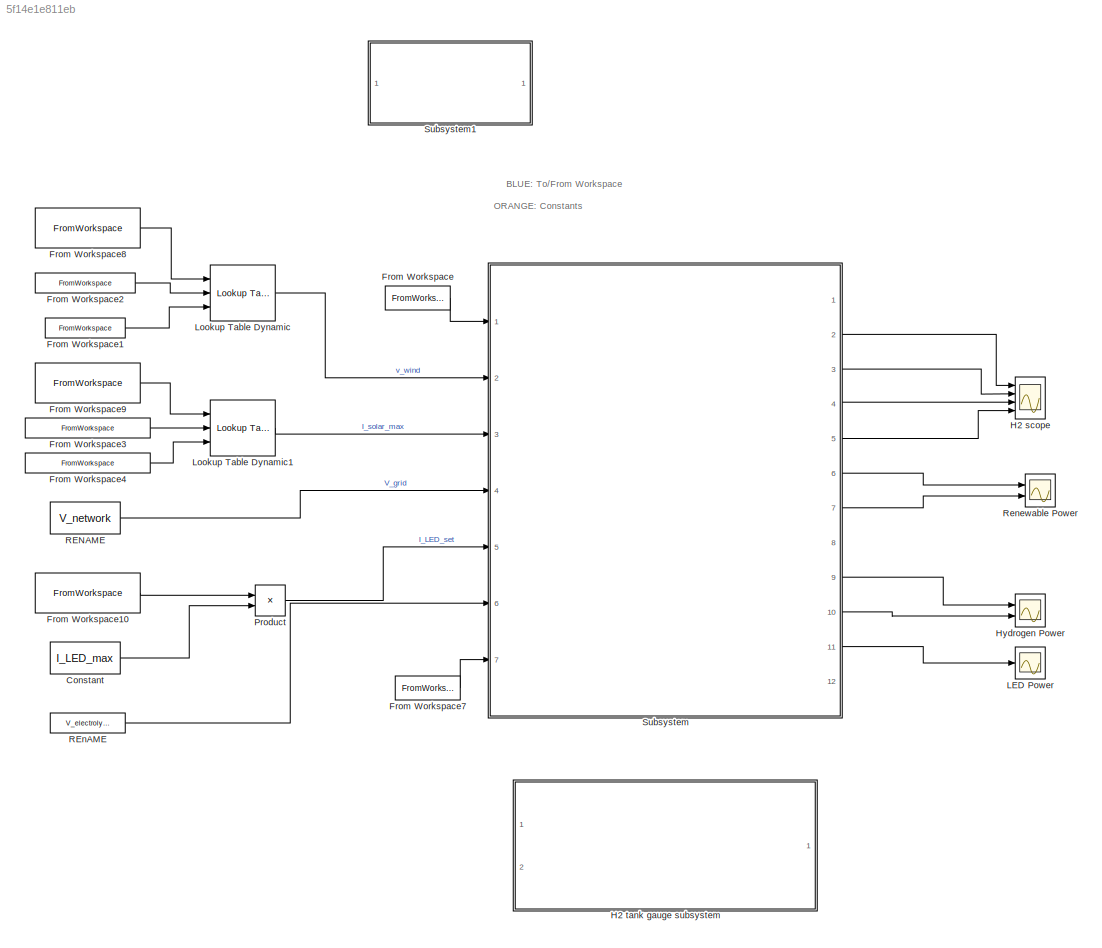
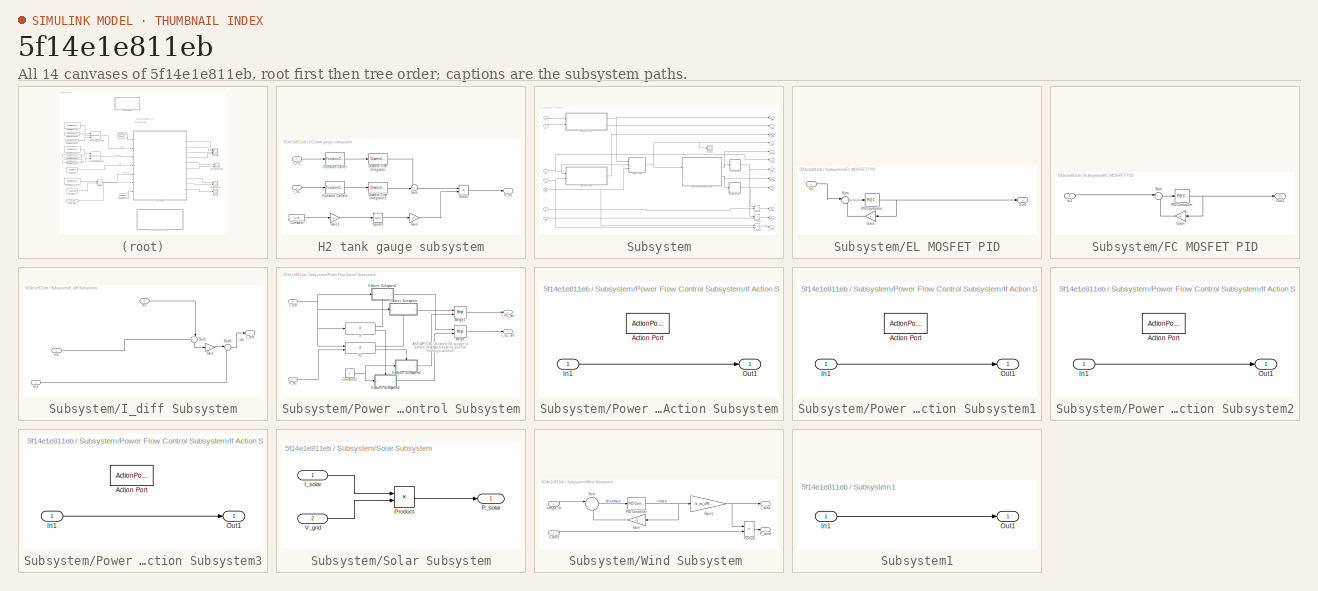
[diagram: thumbnail index - all 14 canvases of the model, root first then tree order]
MODEL slx_5f14e1e811eb
KIND model
CONFIG AbsTol = auto
CONFIG EnableMultiTasking = off
CONFIG FixedStep = auto
CONFIG MaxStep = auto
CONFIG MinStep = auto
CONFIG RelTol = 1e-3
CONFIG SampleTimeConstraint = Unconstrained
CONFIG Solver = VariableStepAuto
CONFIG SolverName = VariableStepAuto
CONFIG StartTime = 0.0
CONFIG StopTime = T_sim
BLOCK [Constant] Constant
  Value = I_LED_max
BLOCK [FromWorkspace] From Workspace
  Interpolate = off
  OutputAfterFinalValue = Holding final value
  SampleTime = T_sim/(columns-1)
  VariableName = omega_m
  ZeroCross = on
BLOCK [FromWorkspace] From Workspace1
  SampleTime = 0
  VariableName = VelocityData
  ZeroCross = on
BLOCK [FromWorkspace] From Workspace10
  SampleTime = 0
  VariableName = PercentLED
  ZeroCross = on
BLOCK [FromWorkspace] From Workspace2
  SampleTime = 0
  VariableName = PercentageData
  ZeroCross = on
BLOCK [FromWorkspace] From Workspace3
  SampleTime = 0
  VariableName = SolarPercentageData
  ZeroCross = on
BLOCK [FromWorkspace] From Workspace4
  SampleTime = 0
  VariableName = SolarMaxCurrentData
  ZeroCross = on
BLOCK [FromWorkspace] From Workspace7
  Interpolate = off
  OutputAfterFinalValue = Holding final value
  SampleTime = T_sim/(columns-1)
  VariableName = V_FC
  ZeroCross = on
BLOCK [FromWorkspace] From Workspace8
  SampleTime = 0
  VariableName = PercentWind
  ZeroCross = on
BLOCK [FromWorkspace] From Workspace9
  SampleTime = 0
  VariableName = PercentSolar
  ZeroCross = on
BLOCK [Scope] H2 scope
  Floating = off
  NumInputPorts = 4
  Ports = [4]
  ScopeSpecificationString = Simulink.scopes.TimeScopeBlockCfg('CurrentConfiguration', extmgr.ConfigurationSet(extmgr.Configuration('Core','General UI',true),extmgr.Configuration('Core','Source UI',true),extmgr.Configuration('Sources','WiredSimulink',true,'DataLoggingVariableName','ScopeData2'),extmgr.Configuration('Visuals','Time Domain',true,'SerializedDisplays',{struct('MinYLimReal','-0.07766','MaxYLimReal','0.69896','YLab...<+1440ch>
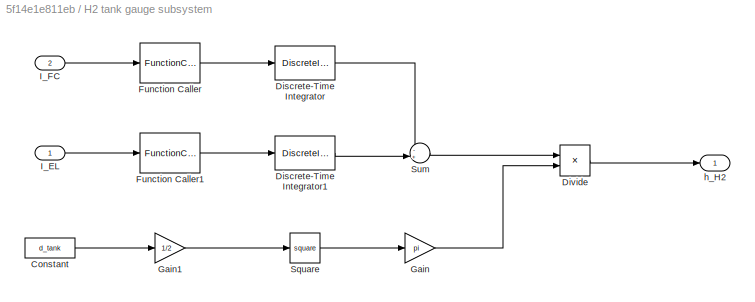
BLOCK [SubSystem] H2 tank gauge subsystem
  Ports = [2, 1]
  RequestExecContextInheritance = off
BLOCK [Constant] H2 tank gauge subsystem/Constant
  Value = d_tank
BLOCK [DiscreteIntegrator] H2 tank gauge subsystem/Discrete-Time Integrator
  ICPrevOutput = DiscIntNeverNeededParam
  ICPrevScaledInput = DiscIntNeverNeededParam
  InitialConditionSetting = Auto
  IntegratorMethod = Integration: Trapezoidal
  Ports = [1, 1]
  SampleTime = -1
BLOCK [DiscreteIntegrator] H2 tank gauge subsystem/Discrete-Time Integrator1
  ICPrevOutput = DiscIntNeverNeededParam
  ICPrevScaledInput = DiscIntNeverNeededParam
  InitialConditionSetting = Auto
  IntegratorMethod = Integration: Trapezoidal
  Ports = [1, 1]
  SampleTime = -1
BLOCK [Product] H2 tank gauge subsystem/Divide
  InputSameDT = off
  Inputs = */
  OutDataTypeStr = Inherit: Inherit via internal rule
  Ports = [2, 1]
  RndMeth = Floor
  SaturateOnIntegerOverflow = off
BLOCK [FunctionCaller] H2 tank gauge subsystem/Function Caller
  FunctionPrototype = y = f(u)
  InputArgumentSpecifications = <Enter example>
  OutputArgumentSpecifications = <Enter example>
  Ports = [1, 1]
BLOCK [FunctionCaller] H2 tank gauge subsystem/Function Caller1
  FunctionPrototype = y = f(u)
  InputArgumentSpecifications = <Enter example>
  OutputArgumentSpecifications = <Enter example>
  Ports = [1, 1]
BLOCK [Gain] H2 tank gauge subsystem/Gain
  Gain = pi
  OutDataTypeStr = Inherit: Inherit via internal rule
  ParamDataTypeStr = Inherit: Inherit via internal rule
  SaturateOnIntegerOverflow = off
BLOCK [Gain] H2 tank gauge subsystem/Gain1
  Gain = 1/2
  OutDataTypeStr = Inherit: Inherit via internal rule
  ParamDataTypeStr = Inherit: Inherit via internal rule
  SaturateOnIntegerOverflow = off
BLOCK [Inport] H2 tank gauge subsystem/I_EL
  IconDisplay = Port number
BLOCK [Inport] H2 tank gauge subsystem/I_FC
  IconDisplay = Port number
  Port = 2
BLOCK [Math] H2 tank gauge subsystem/Square
  Operator = square
  Ports = [1, 1]
  SignedPower = off
BLOCK [Sum] H2 tank gauge subsystem/Sum
  IconShape = round
  InputSameDT = off
  Inputs = -+|
  OutDataTypeStr = Inherit: Inherit via internal rule
  Ports = [2, 1]
  SaturateOnIntegerOverflow = off
BLOCK [Outport] H2 tank gauge subsystem/h_H2
  IconDisplay = Port number
BLOCK [Scope] Hydrogen Power
  Floating = off
  NumInputPorts = 2
  Ports = [2]
  ScopeSpecificationString = Simulink.scopes.TimeScopeBlockCfg('CurrentConfiguration', extmgr.ConfigurationSet(extmgr.Configuration('Core','General UI',true),extmgr.Configuration('Core','Source UI',true),extmgr.Configuration('Sources','WiredSimulink',true,'DataLoggingVariableName','ScopeData4'),extmgr.Configuration('Visuals','Time Domain',true),extmgr.Configuration('Tools','Plot Navigation',true),extmgr.Configuration('Tools',...<+40ch>
BLOCK [Scope] LED Power
  Floating = off
  NumInputPorts = 1
  Ports = [1]
  ScopeSpecificationString = Simulink.scopes.TimeScopeBlockCfg('CurrentConfiguration', extmgr.ConfigurationSet(extmgr.Configuration('Core','General UI',true),extmgr.Configuration('Core','Source UI',true),extmgr.Configuration('Sources','WiredSimulink',true,'DataLoggingVariableName','ScopeData5'),extmgr.Configuration('Visuals','Time Domain',true),extmgr.Configuration('Tools','Plot Navigation',true),extmgr.Configuration('Tools',...<+40ch>
BLOCK [Reference] Lookup Table Dynamic  REF=simulink/Lookup
Tables/Lookup
Table
Dynamic
  Ports = [3, 1]
  SourceBlock = simulink/Lookup\nTables/Lookup\nTable\nDynamic
  SourceProductBaseCode = SL
  SourceProductName = Simulink
  SourceType = Lookup Table Dynamic
BLOCK [Reference] Lookup Table Dynamic1  REF=simulink/Lookup
Tables/Lookup
Table
Dynamic
  Ports = [3, 1]
  SourceBlock = simulink/Lookup\nTables/Lookup\nTable\nDynamic
  SourceProductBaseCode = SL
  SourceProductName = Simulink
  SourceType = Lookup Table Dynamic
BLOCK [Product] Product
  InputSameDT = off
  OutDataTypeStr = Inherit: Inherit via internal rule
  Ports = [2, 1]
  RndMeth = Floor
  SaturateOnIntegerOverflow = off
BLOCK [Constant] RENAME
  Value = V_network
BLOCK [Constant] REnAME
  Value = V_electrolyzer
BLOCK [Scope] Renewable Power
  Floating = off
  NumInputPorts = 2
  Ports = [2]
  ScopeSpecificationString = Simulink.scopes.TimeScopeBlockCfg('CurrentConfiguration', extmgr.ConfigurationSet(extmgr.Configuration('Core','General UI',true),extmgr.Configuration('Core','Source UI',true),extmgr.Configuration('Sources','WiredSimulink',true,'DataLoggingVariableName','ScopeData3'),extmgr.Configuration('Visuals','Time Domain',true),extmgr.Configuration('Tools','Plot Navigation',true),extmgr.Configuration('Tools',...<+40ch>
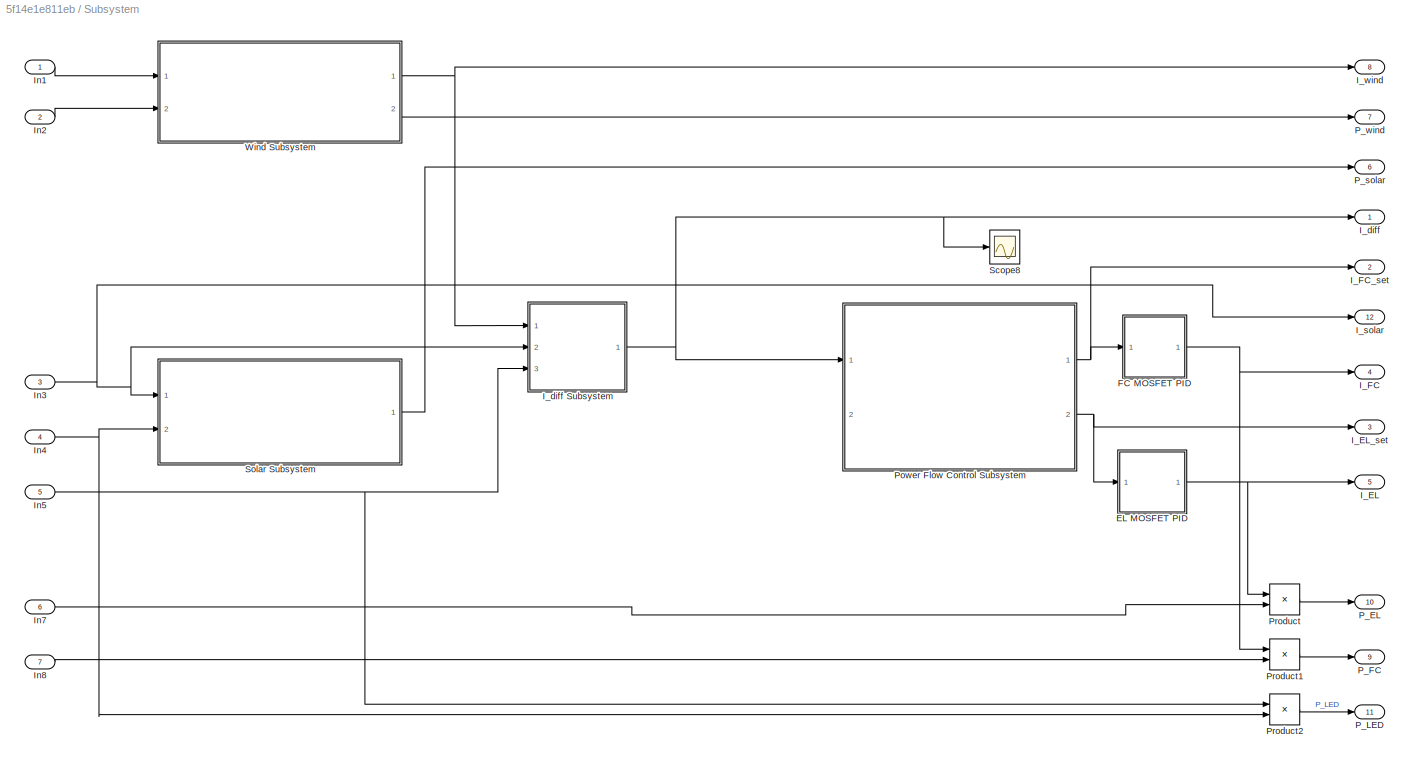
BLOCK [SubSystem] Subsystem
  Ports = [7, 12]
  RequestExecContextInheritance = off
BLOCK [SubSystem] Subsystem/EL MOSFET PID
  Ports = [1, 1]
  RequestExecContextInheritance = off
BLOCK [Gain] Subsystem/EL MOSFET PID/Gain
  Gain = -1
  OutDataTypeStr = Inherit: Inherit via internal rule
  ParamDataTypeStr = Inherit: Inherit via internal rule
  SaturateOnIntegerOverflow = off
BLOCK [Inport] Subsystem/EL MOSFET PID/In1
  IconDisplay = Port number
BLOCK [Outport] Subsystem/EL MOSFET PID/Out1
  IconDisplay = Port number
BLOCK [Reference] Subsystem/EL MOSFET PID/PID Controller  REF=simulink/Continuous/PID Controller
  Ports = [1, 1]
  SourceBlock = simulink/Continuous/PID Controller
  SourceProductBaseCode = SL
  SourceProductName = Simulink
  SourceType = PID 1dof
BLOCK [Sum] Subsystem/EL MOSFET PID/Sum
  IconShape = round
  InputSameDT = off
  Inputs = |++
  OutDataTypeStr = Inherit: Inherit via internal rule
  Ports = [2, 1]
  SaturateOnIntegerOverflow = off
BLOCK [SubSystem] Subsystem/FC MOSFET PID
  Ports = [1, 1]
  RequestExecContextInheritance = off
BLOCK [Gain] Subsystem/FC MOSFET PID/Gain
  Gain = -1
  OutDataTypeStr = Inherit: Inherit via internal rule
  ParamDataTypeStr = Inherit: Inherit via internal rule
  SaturateOnIntegerOverflow = off
BLOCK [Inport] Subsystem/FC MOSFET PID/In1
  IconDisplay = Port number
BLOCK [Outport] Subsystem/FC MOSFET PID/Out1
  IconDisplay = Port number
BLOCK [Reference] Subsystem/FC MOSFET PID/PID Controller  REF=simulink/Continuous/PID Controller
  Ports = [1, 1]
  SourceBlock = simulink/Continuous/PID Controller
  SourceProductBaseCode = SL
  SourceProductName = Simulink
  SourceType = PID 1dof
BLOCK [Sum] Subsystem/FC MOSFET PID/Sum
  IconShape = round
  InputSameDT = off
  Inputs = |++
  OutDataTypeStr = Inherit: Inherit via internal rule
  Ports = [2, 1]
  SaturateOnIntegerOverflow = off
BLOCK [Outport] Subsystem/I_EL
  IconDisplay = Port number
  Port = 5
BLOCK [Outport] Subsystem/I_EL_set
  IconDisplay = Port number
  Port = 3
BLOCK [Outport] Subsystem/I_FC
  IconDisplay = Port number
  Port = 4
BLOCK [Outport] Subsystem/I_FC_set
  IconDisplay = Port number
  Port = 2
BLOCK [Outport] Subsystem/I_diff
  IconDisplay = Port number
BLOCK [SubSystem] Subsystem/I_diff Subsystem
  Ports = [3, 1]
  RequestExecContextInheritance = off
BLOCK [Gain] Subsystem/I_diff Subsystem/Gain
  Gain = -1
  OutDataTypeStr = Inherit: Inherit via internal rule
  ParamDataTypeStr = Inherit: Inherit via internal rule
  SaturateOnIntegerOverflow = off
BLOCK [Outport] Subsystem/I_diff Subsystem/I_diff
  IconDisplay = Port number
BLOCK [Inport] Subsystem/I_diff Subsystem/In1
  IconDisplay = Port number
BLOCK [Inport] Subsystem/I_diff Subsystem/In2
  IconDisplay = Port number
  Port = 2
BLOCK [Inport] Subsystem/I_diff Subsystem/In3
  IconDisplay = Port number
  Port = 3
BLOCK [Sum] Subsystem/I_diff Subsystem/Sum
  IconShape = round
  InputSameDT = off
  Inputs = ++|
  OutDataTypeStr = Inherit: Inherit via internal rule
  Ports = [2, 1]
  SaturateOnIntegerOverflow = off
BLOCK [Sum] Subsystem/I_diff Subsystem/Sum1
  IconShape = round
  InputSameDT = off
  Inputs = |++
  OutDataTypeStr = Inherit: Inherit via internal rule
  Ports = [2, 1]
  SaturateOnIntegerOverflow = off
BLOCK [Outport] Subsystem/I_solar
  IconDisplay = Port number
  Port = 12
BLOCK [Outport] Subsystem/I_wind
  IconDisplay = Port number
  Port = 8
BLOCK [Inport] Subsystem/In1
  IconDisplay = Port number
BLOCK [Inport] Subsystem/In2
  IconDisplay = Port number
  Port = 2
BLOCK [Inport] Subsystem/In3
  IconDisplay = Port number
  Port = 3
BLOCK [Inport] Subsystem/In4
  IconDisplay = Port number
  Port = 4
BLOCK [Inport] Subsystem/In5
  IconDisplay = Port number
  Port = 5
BLOCK [Inport] Subsystem/In7
  IconDisplay = Port number
  Port = 6
BLOCK [Inport] Subsystem/In8
  IconDisplay = Port number
  Port = 7
BLOCK [Outport] Subsystem/P_EL
  IconDisplay = Port number
  Port = 10
BLOCK [Outport] Subsystem/P_FC
  IconDisplay = Port number
  Port = 9
BLOCK [Outport] Subsystem/P_LED
  IconDisplay = Port number
  Port = 11
BLOCK [Outport] Subsystem/P_solar
  IconDisplay = Port number
  Port = 6
BLOCK [Outport] Subsystem/P_wind
  IconDisplay = Port number
  Port = 7
BLOCK [SubSystem] Subsystem/Power Flow Control Subsystem
  Ports = [2, 2]
  RequestExecContextInheritance = off
BLOCK [Constant] Subsystem/Power Flow Control Subsystem/Constant2
  Value = 0
BLOCK [Outport] Subsystem/Power Flow Control Subsystem/I_EL_set
  IconDisplay = Port number
  Port = 2
BLOCK [Outport] Subsystem/Power Flow Control Subsystem/I_FC_set
  IconDisplay = Port number
BLOCK [Inport] Subsystem/Power Flow Control Subsystem/I_diff
  IconDisplay = Port number
BLOCK [If] Subsystem/Power Flow Control Subsystem/If
  IfExpression = u1 < 0
  Ports = [1, 2]
BLOCK [SubSystem] Subsystem/Power Flow Control Subsystem/If Action Subsystem
  Ports = [1, 1, 0, 0, 0, 0, 0, 1]
  RequestExecContextInheritance = off
  TreatAsAtomicUnit = on
BLOCK [ActionPort] Subsystem/Power Flow Control Subsystem/If Action Subsystem/Action Port
  ActionPortLabel = if(u1 > 0 & u2 > 0)
BLOCK [Inport] Subsystem/Power Flow Control Subsystem/If Action Subsystem/In1
  IconDisplay = Port number
BLOCK [Outport] Subsystem/Power Flow Control Subsystem/If Action Subsystem/Out1
  IconDisplay = Port number
BLOCK [SubSystem] Subsystem/Power Flow Control Subsystem/If Action Subsystem1
  Ports = [1, 1, 0, 0, 0, 0, 0, 1]
  RequestExecContextInheritance = off
  TreatAsAtomicUnit = on
BLOCK [ActionPort] Subsystem/Power Flow Control Subsystem/If Action Subsystem1/Action Port
  ActionPortLabel = if(u1 < 0)
BLOCK [Inport] Subsystem/Power Flow Control Subsystem/If Action Subsystem1/In1
  IconDisplay = Port number
BLOCK [Outport] Subsystem/Power Flow Control Subsystem/If Action Subsystem1/Out1
  IconDisplay = Port number
BLOCK [SubSystem] Subsystem/Power Flow Control Subsystem/If Action Subsystem2
  Ports = [1, 1, 0, 0, 0, 0, 0, 1]
  RequestExecContextInheritance = off
  TreatAsAtomicUnit = on
BLOCK [ActionPort] Subsystem/Power Flow Control Subsystem/If Action Subsystem2/Action Port
  ActionPortLabel = else
BLOCK [Inport] Subsystem/Power Flow Control Subsystem/If Action Subsystem2/In1
  IconDisplay = Port number
BLOCK [Outport] Subsystem/Power Flow Control Subsystem/If Action Subsystem2/Out1
  IconDisplay = Port number
BLOCK [SubSystem] Subsystem/Power Flow Control Subsystem/If Action Subsystem3
  Ports = [1, 1, 0, 0, 0, 0, 0, 1]
  RequestExecContextInheritance = off
  TreatAsAtomicUnit = on
BLOCK [ActionPort] Subsystem/Power Flow Control Subsystem/If Action Subsystem3/Action Port
  ActionPortLabel = else
BLOCK [Inport] Subsystem/Power Flow Control Subsystem/If Action Subsystem3/In1
  IconDisplay = Port number
BLOCK [Outport] Subsystem/Power Flow Control Subsystem/If Action Subsystem3/Out1
  IconDisplay = Port number
BLOCK [If] Subsystem/Power Flow Control Subsystem/If2
  IfExpression = u1 > 0 & u2 > 0
  NumInputs = 2
  Ports = [2, 2]
BLOCK [Merge] Subsystem/Power Flow Control Subsystem/Merge
  Ports = [2, 1]
BLOCK [Merge] Subsystem/Power Flow Control Subsystem/Merge1
  Ports = [2, 1]
BLOCK [Inport] Subsystem/Power Flow Control Subsystem/h_H2
  IconDisplay = Port number
  Port = 2
BLOCK [Product] Subsystem/Product
  InputSameDT = off
  OutDataTypeStr = Inherit: Inherit via internal rule
  Ports = [2, 1]
  RndMeth = Floor
  SaturateOnIntegerOverflow = off
BLOCK [Product] Subsystem/Product1
  InputSameDT = off
  OutDataTypeStr = Inherit: Inherit via internal rule
  Ports = [2, 1]
  RndMeth = Floor
  SaturateOnIntegerOverflow = off
BLOCK [Product] Subsystem/Product2
  InputSameDT = off
  OutDataTypeStr = Inherit: Inherit via internal rule
  Ports = [2, 1]
  RndMeth = Floor
  SaturateOnIntegerOverflow = off
BLOCK [Scope] Subsystem/Scope8
  Floating = off
  NumInputPorts = 1
  Ports = [1]
  ScopeSpecificationString = Simulink.scopes.TimeScopeBlockCfg('CurrentConfiguration', extmgr.ConfigurationSet(extmgr.Configuration('Core','General UI',true),extmgr.Configuration('Core','Source UI',true),extmgr.Configuration('Sources','WiredSimulink',true,'DataLoggingVariableName','ScopeData8'),extmgr.Configuration('Visuals','Time Domain',true,'SerializedDisplays',{struct('MinYLimReal','-0.05341','MaxYLimReal','0.69626','YLab...<+1405ch>
BLOCK [SubSystem] Subsystem/Solar Subsystem
  Ports = [2, 1]
  RequestExecContextInheritance = off
BLOCK [Inport] Subsystem/Solar Subsystem/I_solar
  IconDisplay = Port number
BLOCK [Outport] Subsystem/Solar Subsystem/P_solar
  IconDisplay = Port number
BLOCK [Product] Subsystem/Solar Subsystem/Product
  InputSameDT = off
  OutDataTypeStr = Inherit: Inherit via internal rule
  Ports = [2, 1]
  RndMeth = Floor
  SaturateOnIntegerOverflow = off
BLOCK [Inport] Subsystem/Solar Subsystem/V_grid
  IconDisplay = Port number
  Port = 2
BLOCK [SubSystem] Subsystem/Wind Subsystem 
  Ports = [2, 2]
  RequestExecContextInheritance = off
BLOCK [Gain] Subsystem/Wind Subsystem /Gain
  Gain = -1
  OutDataTypeStr = Inherit: Inherit via internal rule
  ParamDataTypeStr = Inherit: Inherit via internal rule
  SaturateOnIntegerOverflow = off
BLOCK [Gain] Subsystem/Wind Subsystem /Gain1
  Gain = k_m_t/R_load
  OutDataTypeStr = Inherit: Inherit via internal rule
  ParamDataTypeStr = Inherit: Inherit via internal rule
  SaturateOnIntegerOverflow = off
BLOCK [Outport] Subsystem/Wind Subsystem /I_wind 
  IconDisplay = Port number
BLOCK [Reference] Subsystem/Wind Subsystem /PID Controller  REF=simulink/Continuous/PID Controller
  Ports = [1, 1]
  SourceBlock = simulink/Continuous/PID Controller
  SourceProductBaseCode = SL
  SourceProductName = Simulink
  SourceType = PID 1dof
BLOCK [Outport] Subsystem/Wind Subsystem /P_wind 
  IconDisplay = Port number
  Port = 2
BLOCK [Product] Subsystem/Wind Subsystem /Product
  InputSameDT = off
  OutDataTypeStr = Inherit: Inherit via internal rule
  Ports = [2, 1]
  RndMeth = Floor
  SaturateOnIntegerOverflow = off
BLOCK [Sum] Subsystem/Wind Subsystem /Sum
  IconShape = round
  InputSameDT = off
  Inputs = |++
  OutDataTypeStr = Inherit: Inherit via internal rule
  Ports = [2, 1]
  SaturateOnIntegerOverflow = off
BLOCK [Inport] Subsystem/Wind Subsystem /omega_m
  IconDisplay = Port number
BLOCK [Inport] Subsystem/Wind Subsystem /v_wind 
  IconDisplay = Port number
  Port = 2
BLOCK [SubSystem] Subsystem1
  Ports = [1, 1]
  RequestExecContextInheritance = off
BLOCK [Inport] Subsystem1/In1
  IconDisplay = Port number
BLOCK [Outport] Subsystem1/Out1
  IconDisplay = Port number
ANNOTATION (root): BLUE: To/From Workspace
ANNOTATION (root): ORANGE: Constants
ANNOTATION Subsystem/Power Flow Control Subsystem: ASSUMPTION: Unlimited H2 storage to prevent the system crashing and not finding a solution
LINE Constant:1 -> Product:2
LINE From Workspace10:1 -> Product:1
LINE From Workspace1:1 -> Lookup Table Dynamic:3
LINE From Workspace2:1 -> Lookup Table Dynamic:2
LINE From Workspace3:1 -> Lookup Table Dynamic1:2
LINE From Workspace4:1 -> Lookup Table Dynamic1:3
LINE From Workspace7:1 -> Subsystem:7
LINE From Workspace8:1 -> Lookup Table Dynamic:1
LINE From Workspace9:1 -> Lookup Table Dynamic1:1
LINE From Workspace:1 -> Subsystem:1
LINE H2 tank gauge subsystem/Constant:1 -> H2 tank gauge subsystem/Gain1:1
LINE H2 tank gauge subsystem/Discrete-Time Integrator1:1 -> H2 tank gauge subsystem/Sum:2
LINE H2 tank gauge subsystem/Discrete-Time Integrator:1 -> H2 tank gauge subsystem/Sum:1
LINE H2 tank gauge subsystem/Divide:1 -> H2 tank gauge subsystem/h_H2:1
LINE H2 tank gauge subsystem/Function Caller1:1 -> H2 tank gauge subsystem/Discrete-Time Integrator1:1
LINE H2 tank gauge subsystem/Function Caller:1 -> H2 tank gauge subsystem/Discrete-Time Integrator:1
LINE H2 tank gauge subsystem/Gain1:1 -> H2 tank gauge subsystem/Square:1
LINE H2 tank gauge subsystem/Gain:1 -> H2 tank gauge subsystem/Divide:2
LINE H2 tank gauge subsystem/I_EL:1 -> H2 tank gauge subsystem/Function Caller1:1
LINE H2 tank gauge subsystem/I_FC:1 -> H2 tank gauge subsystem/Function Caller:1
LINE H2 tank gauge subsystem/Square:1 -> H2 tank gauge subsystem/Gain:1
LINE H2 tank gauge subsystem/Sum:1 -> H2 tank gauge subsystem/Divide:1
LINE Lookup Table Dynamic1:1 -> Subsystem:3
LINE Lookup Table Dynamic:1 -> Subsystem:2
LINE Product:1 -> Subsystem:5
LINE RENAME:1 -> Subsystem:4
LINE REnAME:1 -> Subsystem:6
LINE Subsystem/EL MOSFET PID/Gain:1 -> Subsystem/EL MOSFET PID/Sum:2
LINE Subsystem/EL MOSFET PID/In1:1 -> Subsystem/EL MOSFET PID/Sum:1
NET Subsystem/EL MOSFET PID/PID Controller:1 -> Subsystem/EL MOSFET PID/Gain:1, Subsystem/EL MOSFET PID/Out1:1
LINE Subsystem/EL MOSFET PID/Sum:1 -> Subsystem/EL MOSFET PID/PID Controller:1
NET Subsystem/EL MOSFET PID:1 -> Subsystem/I_EL:1, Subsystem/Product:1
LINE Subsystem/FC MOSFET PID/Gain:1 -> Subsystem/FC MOSFET PID/Sum:2
LINE Subsystem/FC MOSFET PID/In1:1 -> Subsystem/FC MOSFET PID/Sum:1
NET Subsystem/FC MOSFET PID/PID Controller:1 -> Subsystem/FC MOSFET PID/Gain:1, Subsystem/FC MOSFET PID/Out1:1
LINE Subsystem/FC MOSFET PID/Sum:1 -> Subsystem/FC MOSFET PID/PID Controller:1
NET Subsystem/FC MOSFET PID:1 -> Subsystem/I_FC:1, Subsystem/Product1:1
LINE Subsystem/I_diff Subsystem/Gain:1 -> Subsystem/I_diff Subsystem/Sum1:1
LINE Subsystem/I_diff Subsystem/In1:1 -> Subsystem/I_diff Subsystem/Sum:2
LINE Subsystem/I_diff Subsystem/In2:1 -> Subsystem/I_diff Subsystem/Sum:1
LINE Subsystem/I_diff Subsystem/In3:1 -> Subsystem/I_diff Subsystem/Sum1:2
LINE Subsystem/I_diff Subsystem/Sum1:1 -> Subsystem/I_diff Subsystem/I_diff:1
LINE Subsystem/I_diff Subsystem/Sum:1 -> Subsystem/I_diff Subsystem/Gain:1
NET Subsystem/I_diff Subsystem:1 -> Subsystem/I_diff:1, Subsystem/Power Flow Control Subsystem:1, Subsystem/Scope8:1
LINE Subsystem/In1:1 -> Subsystem/Wind Subsystem :1
LINE Subsystem/In2:1 -> Subsystem/Wind Subsystem :2
NET Subsystem/In3:1 -> Subsystem/I_diff Subsystem:2, Subsystem/I_solar:1, Subsystem/Solar Subsystem:1
NET Subsystem/In4:1 -> Subsystem/Product2:2, Subsystem/Solar Subsystem:2
NET Subsystem/In5:1 -> Subsystem/I_diff Subsystem:3, Subsystem/Product2:1
LINE Subsystem/In7:1 -> Subsystem/Product:2
LINE Subsystem/In8:1 -> Subsystem/Product1:2
NET Subsystem/Power Flow Control Subsystem/Constant2:1 -> Subsystem/Power Flow Control Subsystem/If Action Subsystem2:1, Subsystem/Power Flow Control Subsystem/If Action Subsystem3:1
NET Subsystem/Power Flow Control Subsystem/I_diff:1 -> Subsystem/Power Flow Control Subsystem/If Action Subsystem1:1, Subsystem/Power Flow Control Subsystem/If Action Subsystem:1, Subsystem/Power Flow Control Subsystem/If2:1, Subsystem/Power Flow Control Subsystem/If:1
LINE Subsystem/Power Flow Control Subsystem/If Action Subsystem/In1:1 -> Subsystem/Power Flow Control Subsystem/If Action Subsystem/Out1:1
LINE Subsystem/Power Flow Control Subsystem/If Action Subsystem1/In1:1 -> Subsystem/Power Flow Control Subsystem/If Action Subsystem1/Out1:1
LINE Subsystem/Power Flow Control Subsystem/If Action Subsystem1:1 -> Subsystem/Power Flow Control Subsystem/Merge:1
LINE Subsystem/Power Flow Control Subsystem/If Action Subsystem2/In1:1 -> Subsystem/Power Flow Control Subsystem/If Action Subsystem2/Out1:1
LINE Subsystem/Power Flow Control Subsystem/If Action Subsystem2:1 -> Subsystem/Power Flow Control Subsystem/Merge1:2
LINE Subsystem/Power Flow Control Subsystem/If Action Subsystem3/In1:1 -> Subsystem/Power Flow Control Subsystem/If Action Subsystem3/Out1:1
LINE Subsystem/Power Flow Control Subsystem/If Action Subsystem3:1 -> Subsystem/Power Flow Control Subsystem/Merge:2
LINE Subsystem/Power Flow Control Subsystem/If Action Subsystem:1 -> Subsystem/Power Flow Control Subsystem/Merge1:1
LINE Subsystem/Power Flow Control Subsystem/If2:1 -> Subsystem/Power Flow Control Subsystem/If Action Subsystem:ifaction
LINE Subsystem/Power Flow Control Subsystem/If2:2 -> Subsystem/Power Flow Control Subsystem/If Action Subsystem2:ifaction
LINE Subsystem/Power Flow Control Subsystem/If:1 -> Subsystem/Power Flow Control Subsystem/If Action Subsystem1:ifaction
LINE Subsystem/Power Flow Control Subsystem/If:2 -> Subsystem/Power Flow Control Subsystem/If Action Subsystem3:ifaction
LINE Subsystem/Power Flow Control Subsystem/Merge1:1 -> Subsystem/Power Flow Control Subsystem/I_FC_set:1
LINE Subsystem/Power Flow Control Subsystem/Merge:1 -> Subsystem/Power Flow Control Subsystem/I_EL_set:1
LINE Subsystem/Power Flow Control Subsystem/h_H2:1 -> Subsystem/Power Flow Control Subsystem/If2:2
NET Subsystem/Power Flow Control Subsystem:1 -> Subsystem/FC MOSFET PID:1, Subsystem/I_FC_set:1
NET Subsystem/Power Flow Control Subsystem:2 -> Subsystem/EL MOSFET PID:1, Subsystem/I_EL_set:1
LINE Subsystem/Product1:1 -> Subsystem/P_FC:1
LINE Subsystem/Product2:1 -> Subsystem/P_LED:1
LINE Subsystem/Product:1 -> Subsystem/P_EL:1
LINE Subsystem/Solar Subsystem/I_solar:1 -> Subsystem/Solar Subsystem/Product:1
LINE Subsystem/Solar Subsystem/Product:1 -> Subsystem/Solar Subsystem/P_solar:1
LINE Subsystem/Solar Subsystem/V_grid:1 -> Subsystem/Solar Subsystem/Product:2
LINE Subsystem/Solar Subsystem:1 -> Subsystem/P_solar:1
NET Subsystem/Wind Subsystem /Gain1:1 -> Subsystem/Wind Subsystem /I_wind :1, Subsystem/Wind Subsystem /Product:1
LINE Subsystem/Wind Subsystem /Gain:1 -> Subsystem/Wind Subsystem /Sum:2
NET Subsystem/Wind Subsystem /PID Controller:1 -> Subsystem/Wind Subsystem /Gain1:1, Subsystem/Wind Subsystem /Gain:1
LINE Subsystem/Wind Subsystem /Product:1 -> Subsystem/Wind Subsystem /P_wind :1
LINE Subsystem/Wind Subsystem /Sum:1 -> Subsystem/Wind Subsystem /PID Controller:1
LINE Subsystem/Wind Subsystem /omega_m:1 -> Subsystem/Wind Subsystem /Sum:1
LINE Subsystem/Wind Subsystem /v_wind :1 -> Subsystem/Wind Subsystem /Product:2
NET Subsystem/Wind Subsystem :1 -> Subsystem/I_diff Subsystem:1, Subsystem/I_wind:1
LINE Subsystem/Wind Subsystem :2 -> Subsystem/P_wind:1
LINE Subsystem1/In1:1 -> Subsystem1/Out1:1
LINE Subsystem:10 -> Hydrogen Power:2
LINE Subsystem:11 -> LED Power:1
LINE Subsystem:2 -> H2 scope:1
LINE Subsystem:3 -> H2 scope:2
LINE Subsystem:4 -> H2 scope:3
LINE Subsystem:5 -> H2 scope:4
LINE Subsystem:6 -> Renewable Power:1
LINE Subsystem:7 -> Renewable Power:2
LINE Subsystem:9 -> Hydrogen Power:1
note: NET lines group one-source signal fan-out (src -> all destinations, sorted); 1:1 wires keep LINE
